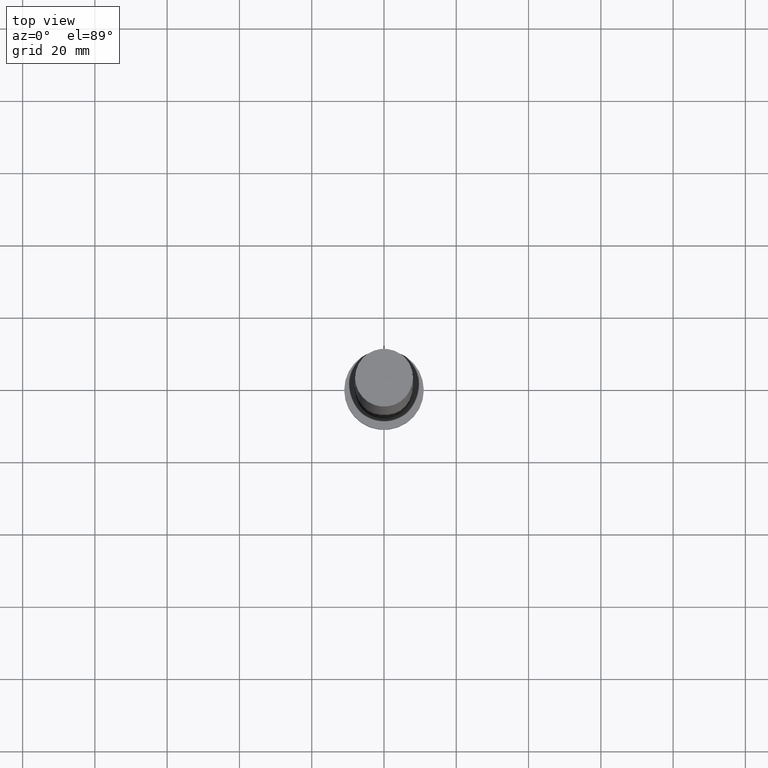
[diagram: clean part render]
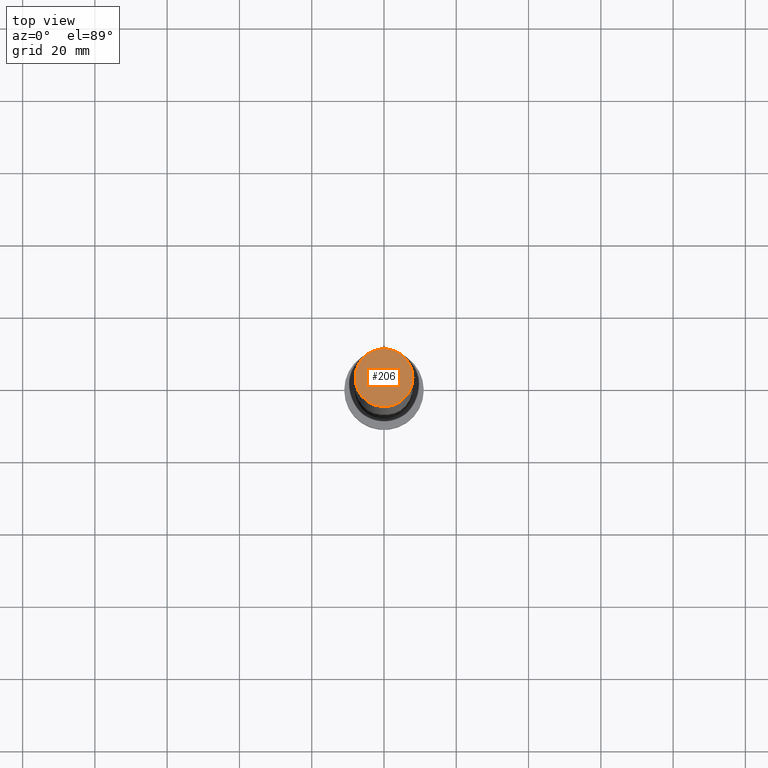
[diagram: same view with one face highlighted and labeled with its STEP entity id]
A machine part, top view. The second image highlights one B-rep face of the part: STEP entity #206.
In plain terms, the highlighted planar face has unit normal (0, 0, 1).
Its self-contained STEP definition (entity closure, byte-faithful):
#23 = AXIS2_PLACEMENT_3D ( 'NONE', #102, #251, #36 ) ;
#25 = CARTESIAN_POINT ( 'NONE',  ( -8.000000000000000000, 0.000000000000000000, 200.0000000000000000 ) ) ;
#36 = DIRECTION ( 'NONE',  ( 1.000000000000000000, 0.000000000000000000, -0.000000000000000000 ) ) ;
#39 = DIRECTION ( 'NONE',  ( 1.000000000000000000, 0.000000000000000000, 0.000000000000000000 ) ) ;
#64 = DIRECTION ( 'NONE',  ( 0.000000000000000000, 0.000000000000000000, 1.000000000000000000 ) ) ;
#68 = AXIS2_PLACEMENT_3D ( 'NONE', #77, #64, #39 ) ;
#75 = FACE_OUTER_BOUND ( 'NONE', #193, .T. ) ;
#77 = CARTESIAN_POINT ( 'NONE',  ( 0.000000000000000000, 0.000000000000000000, 200.0000000000000000 ) ) ;
#81 = AXIS2_PLACEMENT_3D ( 'NONE', #101, #216, #234 ) ;
#101 = CARTESIAN_POINT ( 'NONE',  ( 0.000000000000000000, 0.000000000000000000, 200.0000000000000000 ) ) ;
#102 = CARTESIAN_POINT ( 'NONE',  ( 0.000000000000000000, 0.000000000000000000, 200.0000000000000000 ) ) ;
#103 = PLANE ( 'NONE',  #23 ) ;
#114 = VERTEX_POINT ( 'NONE', #198 ) ;
#155 = VERTEX_POINT ( 'NONE', #25 ) ;
#163 = EDGE_CURVE ( 'NONE', #155, #114, #192, .T. ) ;
#184 = CIRCLE ( 'NONE', #68, 8.000000000000000000 ) ;
#192 = CIRCLE ( 'NONE', #81, 8.000000000000000000 ) ;
#193 = EDGE_LOOP ( 'NONE', ( #247, #207 ) ) ;
#198 = CARTESIAN_POINT ( 'NONE',  ( 8.000000000000000000, 9.797174393178825657E-16, 200.0000000000000000 ) ) ;
#199 = EDGE_CURVE ( 'NONE', #114, #155, #184, .T. ) ;
#206 = ADVANCED_FACE ( 'NONE', ( #75 ), #103, .T. ) ;
#207 = ORIENTED_EDGE ( 'NONE', *, *, #199, .T. ) ;
#216 = DIRECTION ( 'NONE',  ( 0.000000000000000000, 0.000000000000000000, 1.000000000000000000 ) ) ;
#234 = DIRECTION ( 'NONE',  ( 1.000000000000000000, 0.000000000000000000, 0.000000000000000000 ) ) ;
#247 = ORIENTED_EDGE ( 'NONE', *, *, #163, .T. ) ;
#251 = DIRECTION ( 'NONE',  ( 0.000000000000000000, 0.000000000000000000, 1.000000000000000000 ) ) ;